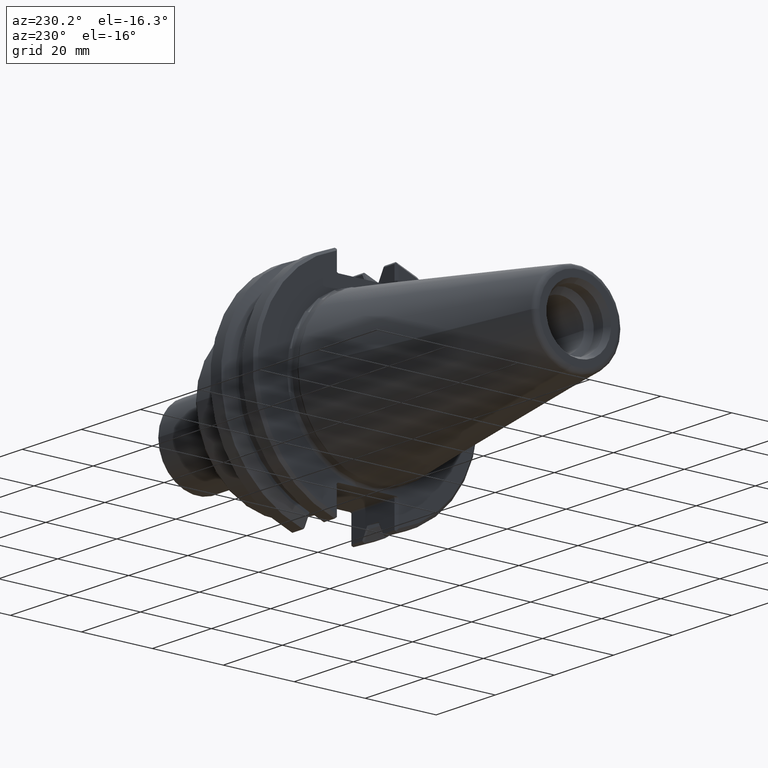
[diagram: clean part render]
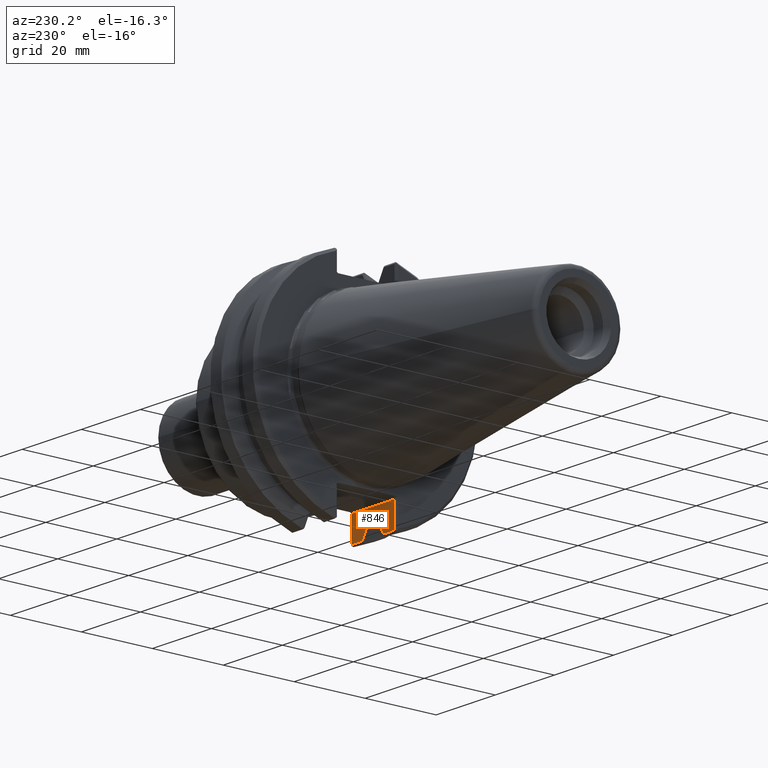
[diagram: same view with one face highlighted and labeled with its STEP entity id]
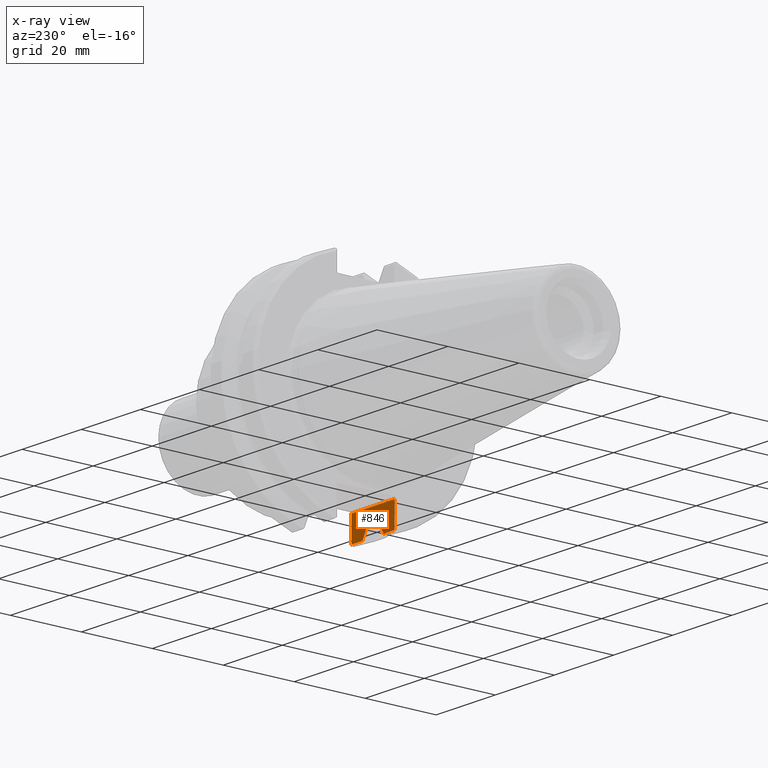
[diagram: x-ray of the same camera — body ghosted, the highlighted face saturated]
A machine part, auxiliary view. The second image highlights one B-rep face of the part: STEP entity #846.
The next image is the same camera in x-ray: the body ghosted, the highlighted face saturated — about 0% of this face is hidden behind the body in this view.
In plain terms, the highlighted planar face has unit normal (0, -1, 0).
Its self-contained STEP definition (entity closure, byte-faithful):
#619=CARTESIAN_POINT('',(0.580421304277985,-0.319999999999687,-1.183345976877741));
#620=VERTEX_POINT('',#619);
#658=CARTESIAN_POINT('',(0.51385000000495,-0.319999999999698,-1.063639010678425));
#659=VERTEX_POINT('',#658);
#669=CARTESIAN_POINT('',(0.513850000009079,-0.319999999999698,-1.063639010676139));
#670=CARTESIAN_POINT('',(0.518209481929146,-0.319999999999698,-1.07151296231356));
#671=CARTESIAN_POINT('',(0.523895053949264,-0.319999999999697,-1.081772134702051));
#672=CARTESIAN_POINT('',(0.529585774598698,-0.319999999999696,-1.092028450316004));
#673=CARTESIAN_POINT('',(0.532242435800828,-0.319999999999695,-1.09681522329285));
#674=CARTESIAN_POINT('',(0.533575035860879,-0.319999999999695,-1.099215649651441));
#675=CARTESIAN_POINT('',(0.53624884353382,-0.319999999999695,-1.104030721656603));
#676=CARTESIAN_POINT('',(0.537590054439465,-0.319999999999694,-1.106445365477742));
#677=CARTESIAN_POINT('',(0.540281160011828,-0.319999999999694,-1.111289010010182));
#678=CARTESIAN_POINT('',(0.541631057954606,-0.319999999999694,-1.113718008897596));
#679=CARTESIAN_POINT('',(0.547081382439849,-0.319999999999693,-1.123522740143544));
#680=CARTESIAN_POINT('',(0.553961307060808,-0.319999999999692,-1.135889444429755));
#681=CARTESIAN_POINT('',(0.560847814582091,-0.319999999999691,-1.148252483571571));
#682=CARTESIAN_POINT('',(0.565032211490688,-0.31999999999969,-1.155760884731552));
#683=CARTESIAN_POINT('',(0.566435888535076,-0.31999999999969,-1.158278996597279));
#684=CARTESIAN_POINT('',(0.569252488510792,-0.31999999999969,-1.163330587612612));
#685=CARTESIAN_POINT('',(0.570665414666522,-0.319999999999689,-1.165864064967708));
#686=CARTESIAN_POINT('',(0.573500597422728,-0.319999999999689,-1.170946538391492));
#687=CARTESIAN_POINT('',(0.576281025985369,-0.319999999999689,-1.175929661942586));
#688=CARTESIAN_POINT('',(0.579062430184296,-0.319999999999688,-1.180912241135244));
#689=CARTESIAN_POINT('',(0.580421304280026,-0.319999999999688,-1.18334597687825));
#690=B_SPLINE_CURVE_WITH_KNOTS('',3,(#669,#670,#671,#672,#673,#674,#675,#676,#677,#678,#679,#680,#681,#682,#683,#684,#685,#686,#687,#688,#689),.UNSPECIFIED.,.F.,.U.,(4,1,2,2,2,2,1,2,2,2,1,4),(-0.068581829055591,4.009651E-011,0.02079548929619,0.041716361581721,0.062763801992028,0.083939009976959,0.148243454003462,0.1917745781199,0.213742413079505,0.235846833361847,0.258089161818545,0.279329187470236),.UNSPECIFIED.);
#691=EDGE_CURVE('',#659,#620,#690,.T.);
#702=CARTESIAN_POINT('',(0.725000000000004,-0.319999999999664,-1.183345976945412));
#703=VERTEX_POINT('',#702);
#704=CARTESIAN_POINT('',(0.580421304277985,-0.319999999999687,-1.183345976945412));
#705=DIRECTION('',(1.0,1.620274E-013,0.0));
#706=VECTOR('',#705,0.144578695722019);
#707=LINE('',#704,#706);
#708=EDGE_CURVE('',#620,#703,#707,.T.);
#757=CARTESIAN_POINT('',(0.125000000000052,-0.319999999999761,-0.888));
#758=DIRECTION('',(1.622804E-013,-1.0,0.0));
#759=DIRECTION('',(0.0,0.0,-1.0));
#760=AXIS2_PLACEMENT_3D('',#757,#758,#759);
#761=PLANE('',#760);
#762=ORIENTED_EDGE('',*,*,#691,.F.);
#763=CARTESIAN_POINT('',(0.513849999999558,-0.319999999999698,-1.062351283710363));
#764=VERTEX_POINT('',#763);
#765=CARTESIAN_POINT('',(0.513849999999556,-0.319999999999698,-1.062351283710363));
#766=DIRECTION('',(0.0,0.0,-1.0));
#767=VECTOR('',#766,0.001287726968062);
#768=LINE('',#765,#767);
#769=EDGE_CURVE('',#764,#659,#768,.T.);
#770=ORIENTED_EDGE('',*,*,#769,.F.);
#771=CARTESIAN_POINT('',(0.362849999999558,-0.319999999999723,-1.062351283710322));
#772=VERTEX_POINT('',#771);
#773=CARTESIAN_POINT('',(0.362849999999558,-0.319999999999698,-1.062351283710343));
#774=DIRECTION('',(1.0,-1.624896E-013,0.0));
#775=VECTOR('',#774,0.151);
#776=LINE('',#773,#775);
#777=EDGE_CURVE('',#772,#764,#776,.T.);
#778=ORIENTED_EDGE('',*,*,#777,.F.);
#779=CARTESIAN_POINT('',(0.362849999971379,-0.319999999999723,-1.063639010760689));
#780=VERTEX_POINT('',#779);
#781=CARTESIAN_POINT('',(0.362849999999556,-0.319999999999723,-1.063639010760689));
#782=DIRECTION('',(0.0,0.0,1.0));
#783=VECTOR('',#782,0.001287727050366);
#784=LINE('',#781,#783);
#785=EDGE_CURVE('',#780,#772,#784,.T.);
#786=ORIENTED_EDGE('',*,*,#785,.F.);
#787=CARTESIAN_POINT('',(0.296278695650531,-0.319999999999734,-1.183345976940951));
#788=VERTEX_POINT('',#787);
#789=CARTESIAN_POINT('',(0.296278695675296,-0.319999999999734,-1.183345976956426));
#790=CARTESIAN_POINT('',(0.297637569785531,-0.319999999999733,-1.180912241187328));
#791=CARTESIAN_POINT('',(0.300418973998905,-0.319999999999733,-1.175929661968487));
#792=CARTESIAN_POINT('',(0.303199402576101,-0.319999999999732,-1.170946538391272));
#793=CARTESIAN_POINT('',(0.306034585332308,-0.319999999999732,-1.165864064967383));
#794=CARTESIAN_POINT('',(0.307447511488027,-0.319999999999732,-1.163330587612233));
#795=CARTESIAN_POINT('',(0.310264111463749,-0.319999999999731,-1.158278996596819));
#796=CARTESIAN_POINT('',(0.311667788508129,-0.319999999999731,-1.15576088473105));
#797=CARTESIAN_POINT('',(0.315852185416707,-0.319999999999731,-1.148252483570975));
#798=CARTESIAN_POINT('',(0.32273869293784,-0.319999999999729,-1.135889444429022));
#799=CARTESIAN_POINT('',(0.329618617558716,-0.319999999999729,-1.123522740142714));
#800=CARTESIAN_POINT('',(0.335068942043994,-0.319999999999728,-1.113718008896789));
#801=CARTESIAN_POINT('',(0.33641883998677,-0.319999999999727,-1.111289010009385));
#802=CARTESIAN_POINT('',(0.339109945559129,-0.319999999999727,-1.106445365476973));
#803=CARTESIAN_POINT('',(0.340451156464776,-0.319999999999727,-1.104030721655852));
#804=CARTESIAN_POINT('',(0.343124964137713,-0.319999999999726,-1.099215649650728));
#805=CARTESIAN_POINT('',(0.344457564197763,-0.319999999999726,-1.096815223292162));
#806=CARTESIAN_POINT('',(0.347114225399866,-0.319999999999726,-1.092028450315434));
#807=CARTESIAN_POINT('',(0.352804946049162,-0.319999999999725,-1.081772134701521));
#808=CARTESIAN_POINT('',(0.358490518029725,-0.319999999999724,-1.071512962386154));
#809=CARTESIAN_POINT('',(0.362849999949813,-0.319999999999723,-1.063639010748748));
#810=B_SPLINE_CURVE_WITH_KNOTS('',3,(#789,#790,#791,#792,#793,#794,#795,#796,#797,#798,#799,#800,#801,#802,#803,#804,#805,#806,#807,#808,#809),.UNSPECIFIED.,.F.,.U.,(4,1,2,2,2,1,2,2,2,2,1,4),(-0.021240025882211,-1.592465E-011,0.022242328427677,0.044346748696933,0.06631458364347,0.109845707733827,0.174150151721403,0.195325359693422,0.216372800090852,0.237293672363544,0.258089161606295,0.326670990660381),.UNSPECIFIED.);
#811=EDGE_CURVE('',#788,#780,#810,.T.);
#812=ORIENTED_EDGE('',*,*,#811,.F.);
#813=CARTESIAN_POINT('',(0.15,-0.319999999999757,-1.183345976945431));
#814=VERTEX_POINT('',#813);
#815=CARTESIAN_POINT('',(0.15,-0.319999999999757,-1.183345976945431));
#816=DIRECTION('',(1.0,1.620418E-013,0.0));
#817=VECTOR('',#816,0.146278695650531);
#818=LINE('',#815,#817);
#819=EDGE_CURVE('',#814,#788,#818,.T.);
#820=ORIENTED_EDGE('',*,*,#819,.F.);
#821=CARTESIAN_POINT('',(0.15,-0.319999999999757,-0.908));
#822=VERTEX_POINT('',#821);
#823=CARTESIAN_POINT('',(0.15,-0.319999999999757,-0.908));
#824=DIRECTION('',(0.0,0.0,-1.0));
#825=VECTOR('',#824,0.275345976945431);
#826=LINE('',#823,#825);
#827=EDGE_CURVE('',#822,#814,#826,.T.);
#828=ORIENTED_EDGE('',*,*,#827,.F.);
#829=CARTESIAN_POINT('',(0.725000000000004,-0.319999999999664,-0.908));
#830=VERTEX_POINT('',#829);
#831=CARTESIAN_POINT('',(0.725000000000004,-0.319999999999664,-0.908));
#832=DIRECTION('',(-1.0,-1.622856E-013,0.0));
#833=VECTOR('',#832,0.575000000000004);
#834=LINE('',#831,#833);
#835=EDGE_CURVE('',#830,#822,#834,.T.);
#836=ORIENTED_EDGE('',*,*,#835,.F.);
#837=CARTESIAN_POINT('',(0.725000000000004,-0.319999999999664,-1.183345976945412));
#838=DIRECTION('',(0.0,0.0,1.0));
#839=VECTOR('',#838,0.275345976945411);
#840=LINE('',#837,#839);
#841=EDGE_CURVE('',#703,#830,#840,.T.);
#842=ORIENTED_EDGE('',*,*,#841,.F.);
#843=ORIENTED_EDGE('',*,*,#708,.F.);
#844=EDGE_LOOP('',(#762,#770,#778,#786,#812,#820,#828,#836,#842,#843));
#845=FACE_OUTER_BOUND('',#844,.T.);
#846=ADVANCED_FACE('',(#845),#761,.F.);